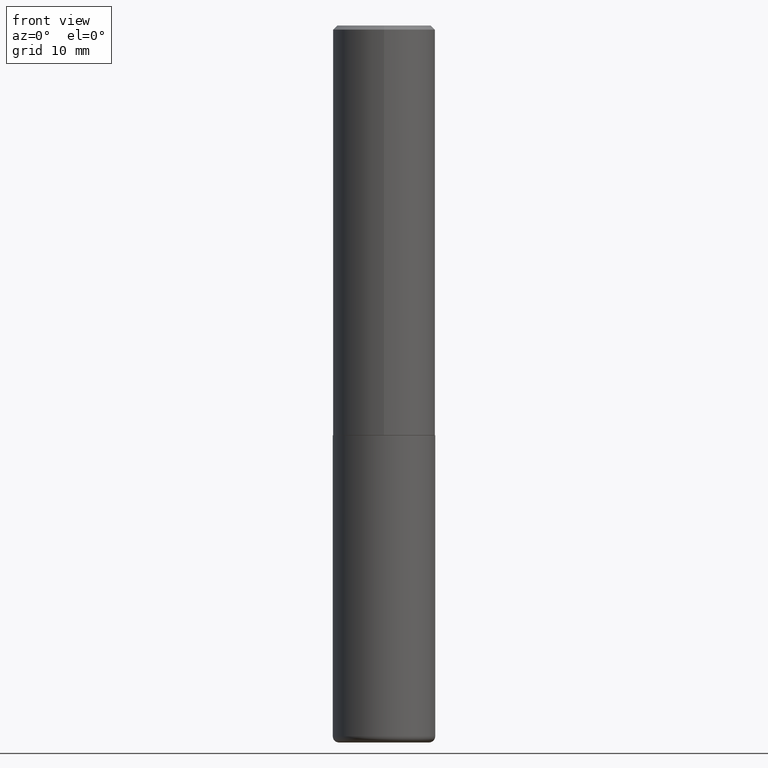
[diagram: clean part render]
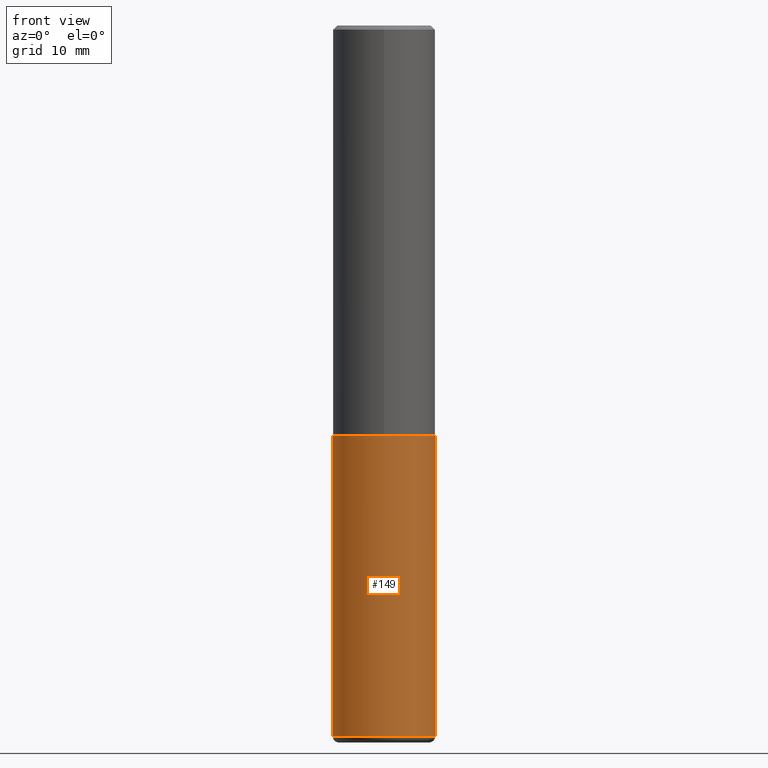
[diagram: same view with one face highlighted and labeled with its STEP entity id]
A machine part, front view. The second image highlights one B-rep face of the part: STEP entity #149.
In plain terms, the highlighted cylindrical surface (partial cylindrical patch) has radius 6.35 mm, axis along (-0, 0, 1).
Its self-contained STEP definition (entity closure, byte-faithful):
#19 = CARTESIAN_POINT ( 'NONE',  ( -0.2499999999999998612, -1.033908340638546551E-14, -3.469999999999999751 ) ) ;
#20 = CARTESIAN_POINT ( 'NONE',  ( 0.2500000000000000000, -8.728703347107857054E-15, -2.000000000000000000 ) ) ;
#40 = ORIENTED_EDGE ( 'NONE', *, *, #147, .T. ) ;
#50 = CYLINDRICAL_SURFACE ( 'NONE', #237, 0.2500000000000000000 ) ;
#53 = CARTESIAN_POINT ( 'NONE',  ( 8.485776757462424574E-29, -1.211544024578571439E-14, -3.469999999999999751 ) ) ;
#76 = EDGE_CURVE ( 'NONE', #133, #288, #400, .T. ) ;
#84 = DIRECTION ( 'NONE',  ( -2.445468806185136597E-29, 3.491481338843145583E-15, 1.000000000000000000 ) ) ;
#88 = VERTEX_POINT ( 'NONE', #20 ) ;
#109 = EDGE_CURVE ( 'NONE', #222, #88, #376, .T. ) ;
#114 = DIRECTION ( 'NONE',  ( 1.000000000000000000, -6.982962677686266711E-15, 0.000000000000000000 ) ) ;
#116 = CARTESIAN_POINT ( 'NONE',  ( 4.890937612370273194E-29, -6.982962677686291165E-15, -2.000000000000000000 ) ) ;
#127 = CIRCLE ( 'NONE', #356, 0.2500000000000000000 ) ;
#133 = VERTEX_POINT ( 'NONE', #19 ) ;
#135 = EDGE_LOOP ( 'NONE', ( #164, #40, #197, #209 ) ) ;
#147 = EDGE_CURVE ( 'NONE', #133, #222, #127, .T. ) ;
#149 = ADVANCED_FACE ( 'NONE', ( #216 ), #50, .T. ) ;
#158 = CARTESIAN_POINT ( 'NONE',  ( 0.2500000000000000000, -1.745740669421566678E-15, 1.219044193948983948E-29 ) ) ;
#164 = ORIENTED_EDGE ( 'NONE', *, *, #76, .F. ) ;
#185 = DIRECTION ( 'NONE',  ( -2.445468806185136597E-29, 3.491481338843145583E-15, 1.000000000000000000 ) ) ;
#190 = CIRCLE ( 'NONE', #243, 0.2500000000000000000 ) ;
#197 = ORIENTED_EDGE ( 'NONE', *, *, #109, .T. ) ;
#203 = CARTESIAN_POINT ( 'NONE',  ( -0.2500000000000000000, 1.776356839400250465E-15, -1.229733772563726445E-29 ) ) ;
#205 = EDGE_CURVE ( 'NONE', #288, #88, #190, .T. ) ;
#209 = ORIENTED_EDGE ( 'NONE', *, *, #205, .F. ) ;
#212 = CARTESIAN_POINT ( 'NONE',  ( 0.2499999999999998612, -1.386118091520728107E-14, -3.469999999999999751 ) ) ;
#213 = VECTOR ( 'NONE', #371, 39.37007874015748143 ) ;
#216 = FACE_OUTER_BOUND ( 'NONE', #135, .T. ) ;
#222 = VERTEX_POINT ( 'NONE', #212 ) ;
#237 = AXIS2_PLACEMENT_3D ( 'NONE', #408, #185, #375 ) ;
#243 = AXIS2_PLACEMENT_3D ( 'NONE', #116, #333, #114 ) ;
#264 = CARTESIAN_POINT ( 'NONE',  ( -0.2500000000000000000, -7.772844622335752710E-15, -2.000000000000000000 ) ) ;
#281 = DIRECTION ( 'NONE',  ( 1.000000000000000000, -6.982962677686262766E-15, 0.000000000000000000 ) ) ;
#288 = VERTEX_POINT ( 'NONE', #264 ) ;
#324 = DIRECTION ( 'NONE',  ( -2.445468806185136877E-29, 3.491481338843145188E-15, 1.000000000000000000 ) ) ;
#333 = DIRECTION ( 'NONE',  ( -2.445468806185136597E-29, 3.491481338843145583E-15, 1.000000000000000000 ) ) ;
#356 = AXIS2_PLACEMENT_3D ( 'NONE', #53, #84, #281 ) ;
#371 = DIRECTION ( 'NONE',  ( -2.445468806185136877E-29, 3.491481338843145188E-15, 1.000000000000000000 ) ) ;
#375 = DIRECTION ( 'NONE',  ( 1.000000000000000000, -6.982962677686266711E-15, 4.876176775795935793E-29 ) ) ;
#376 = LINE ( 'NONE', #158, #213 ) ;
#400 = LINE ( 'NONE', #203, #403 ) ;
#403 = VECTOR ( 'NONE', #324, 39.37007874015748143 ) ;
#408 = CARTESIAN_POINT ( 'NONE',  ( 0.000000000000000000, 0.000000000000000000, 0.000000000000000000 ) ) ;